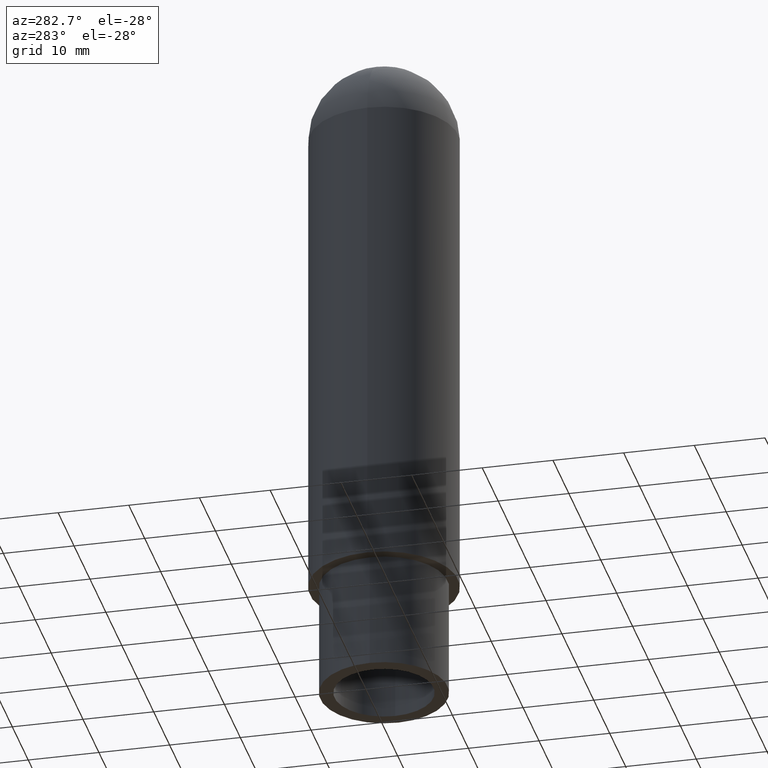
[diagram: clean part render]
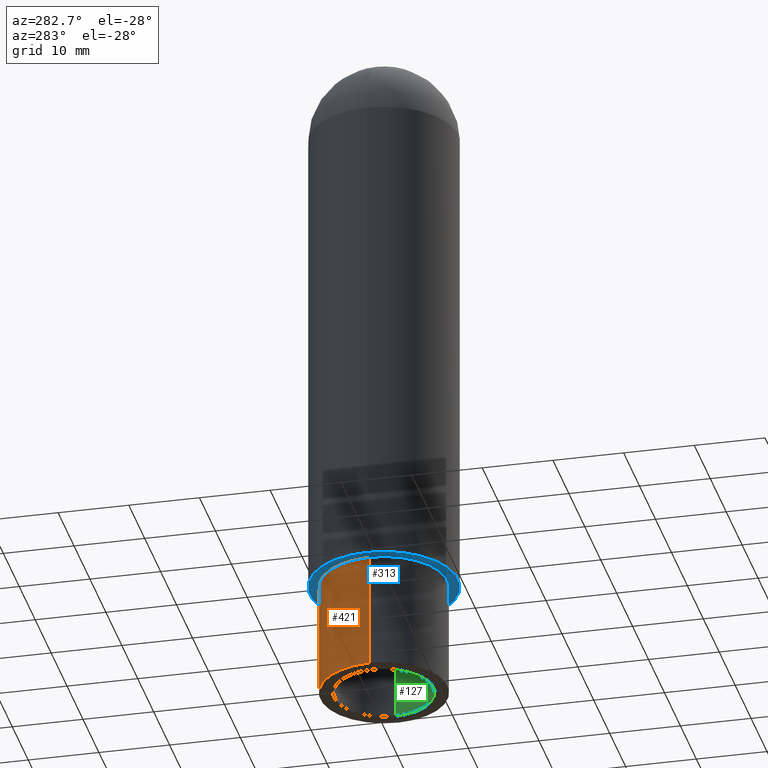
[diagram: same view with three faces highlighted in distinct colors, each labeled with its STEP entity id]
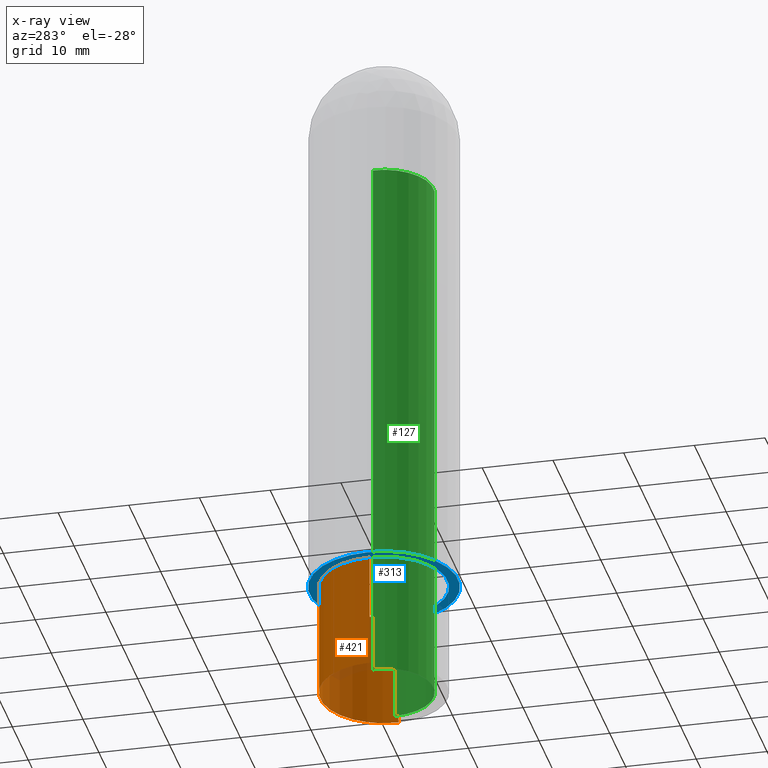
[diagram: x-ray of the same camera — body ghosted, the three highlighted faces saturated]
A machine part, auxiliary view with three faces highlighted in distinct colors.
The next image is the same camera in x-ray (body ghosted, the three faces saturated) — at least one of them is partly hidden behind the body in this view.
Their STEP definitions:

[orange] entity #421 — the highlighted cylindrical surface (partial cylindrical patch) has radius 9 mm, axis along (0, 0, 1).
#49=CARTESIAN_POINT('',(-4.716946060098080,-1.613904443833870,0.0));
#50=VERTEX_POINT('',#49);
#51=CARTESIAN_POINT('',(-4.716946060098080,-1.613904443833870,16.499999999999993));
#52=VERTEX_POINT('',#51);
#53=CARTESIAN_POINT('',(-4.716946060098080,-1.613904443833870,0.0));
#54=DIRECTION('',(0.0,0.0,1.0));
#55=VECTOR('',#54,16.499999999999993);
#56=LINE('',#53,#55);
#57=EDGE_CURVE('',#50,#52,#56,.T.);
#59=CARTESIAN_POINT('',(13.283053939901919,-1.613904443833870,0.0));
#60=VERTEX_POINT('',#59);
#68=CARTESIAN_POINT('',(13.283053939901921,-1.613904443833868,16.499999999999993));
#69=VERTEX_POINT('',#68);
#70=CARTESIAN_POINT('',(13.283053939901921,-1.613904443833868,16.499999999999993));
#71=DIRECTION('',(0.0,0.0,-1.0));
#72=VECTOR('',#71,16.499999999999993);
#73=LINE('',#70,#72);
#74=EDGE_CURVE('',#69,#60,#73,.T.);
#304=CARTESIAN_POINT('',(4.283053939901920,-1.613904443833871,16.499999999999993));
#305=DIRECTION('',(0.0,0.0,-1.0));
#306=DIRECTION('',(-1.0,0.0,0.0));
#307=AXIS2_PLACEMENT_3D('',#304,#305,#306);
#308=CIRCLE('',#307,9.0);
#309=EDGE_CURVE('',#52,#69,#308,.T.);
#404=CARTESIAN_POINT('',(4.283053939901920,-1.613904443833871,0.0));
#405=DIRECTION('',(0.0,0.0,1.0));
#406=DIRECTION('',(-1.0,0.0,0.0));
#407=AXIS2_PLACEMENT_3D('',#404,#405,#406);
#408=CYLINDRICAL_SURFACE('',#407,9.0);
#409=ORIENTED_EDGE('',*,*,#57,.T.);
#410=ORIENTED_EDGE('',*,*,#309,.T.);
#411=ORIENTED_EDGE('',*,*,#74,.T.);
#412=CARTESIAN_POINT('',(4.283053939901920,-1.613904443833871,0.0));
#413=DIRECTION('',(0.0,0.0,-1.0));
#414=DIRECTION('',(-1.0,0.0,0.0));
#415=AXIS2_PLACEMENT_3D('',#412,#413,#414);
#416=CIRCLE('',#415,9.0);
#417=EDGE_CURVE('',#50,#60,#416,.T.);
#418=ORIENTED_EDGE('',*,*,#417,.F.);
#419=EDGE_LOOP('',(#409,#410,#411,#418));
#420=FACE_OUTER_BOUND('',#419,.T.);
#421=ADVANCED_FACE('',(#420),#408,.T.);

[blue] entity #313 — the highlighted planar face has unit normal (0, 0, -1).
#51=CARTESIAN_POINT('',(-4.716946060098080,-1.613904443833870,16.499999999999993));
#52=VERTEX_POINT('',#51);
#68=CARTESIAN_POINT('',(13.283053939901921,-1.613904443833868,16.499999999999993));
#69=VERTEX_POINT('',#68);
#76=CARTESIAN_POINT('',(4.283053939901920,-1.613904443833871,16.499999999999993));
#77=DIRECTION('',(0.0,0.0,-1.0));
#78=DIRECTION('',(-1.0,0.0,0.0));
#79=AXIS2_PLACEMENT_3D('',#76,#77,#78);
#80=CIRCLE('',#79,9.0);
#81=EDGE_CURVE('',#69,#52,#80,.T.);
#207=CARTESIAN_POINT('',(-6.216946060098080,-1.613904443833868,16.499999999999996));
#208=VERTEX_POINT('',#207);
#217=CARTESIAN_POINT('',(14.783053939901922,-1.613904443833868,16.499999999999993));
#218=VERTEX_POINT('',#217);
#219=CARTESIAN_POINT('',(4.283053939901921,-1.613904443833869,16.499999999999993));
#220=DIRECTION('',(0.0,0.0,-1.0));
#221=DIRECTION('',(-1.0,0.0,0.0));
#222=AXIS2_PLACEMENT_3D('',#219,#220,#221);
#223=CIRCLE('',#222,10.500000000000000);
#224=EDGE_CURVE('',#218,#208,#223,.T.);
#284=CARTESIAN_POINT('',(4.283053939901921,-1.613904443833869,16.499999999999993));
#285=DIRECTION('',(0.0,0.0,-1.0));
#286=DIRECTION('',(-1.0,0.0,0.0));
#287=AXIS2_PLACEMENT_3D('',#284,#285,#286);
#288=CIRCLE('',#287,10.500000000000000);
#289=EDGE_CURVE('',#208,#218,#288,.T.);
#294=CARTESIAN_POINT('',(4.283053939901921,-1.613904443833869,16.499999999999993));
#295=DIRECTION('',(0.0,0.0,-1.0));
#296=DIRECTION('',(-1.0,0.0,0.0));
#297=AXIS2_PLACEMENT_3D('',#294,#295,#296);
#298=PLANE('',#297);
#299=ORIENTED_EDGE('',*,*,#224,.T.);
#300=ORIENTED_EDGE('',*,*,#289,.T.);
#301=EDGE_LOOP('',(#299,#300));
#302=FACE_OUTER_BOUND('',#301,.T.);
#303=ORIENTED_EDGE('',*,*,#81,.F.);
#304=CARTESIAN_POINT('',(4.283053939901920,-1.613904443833871,16.499999999999993));
#305=DIRECTION('',(0.0,0.0,-1.0));
#306=DIRECTION('',(-1.0,0.0,0.0));
#307=AXIS2_PLACEMENT_3D('',#304,#305,#306);
#308=CIRCLE('',#307,9.0);
#309=EDGE_CURVE('',#52,#69,#308,.T.);
#310=ORIENTED_EDGE('',*,*,#309,.F.);
#311=EDGE_LOOP('',(#303,#310));
#312=FACE_BOUND('',#311,.T.);
#313=ADVANCED_FACE('',(#302,#312),#298,.T.);

[green] entity #127 — the highlighted cylindrical surface (partial cylindrical patch) has radius 7 mm, axis along (0, 0, 1).
#86=CARTESIAN_POINT('',(4.283053939901920,-1.613904443833871,0.0));
#87=DIRECTION('',(0.0,0.0,1.0));
#88=DIRECTION('',(-1.0,0.0,0.0));
#89=AXIS2_PLACEMENT_3D('',#86,#87,#88);
#90=CYLINDRICAL_SURFACE('',#89,7.000000000000001);
#91=CARTESIAN_POINT('',(-2.716946060098081,-1.613904443833870,78.0));
#92=VERTEX_POINT('',#91);
#93=CARTESIAN_POINT('',(-2.716946060098081,-1.613904443833870,0.0));
#94=VERTEX_POINT('',#93);
#95=CARTESIAN_POINT('',(-2.716946060098081,-1.613904443833870,78.0));
#96=DIRECTION('',(0.0,0.0,-1.0));
#97=VECTOR('',#96,78.0);
#98=LINE('',#95,#97);
#99=EDGE_CURVE('',#92,#94,#98,.T.);
#100=ORIENTED_EDGE('',*,*,#99,.F.);
#101=CARTESIAN_POINT('',(11.283053939901922,-1.613904443833870,78.0));
#102=VERTEX_POINT('',#101);
#103=CARTESIAN_POINT('',(4.283053939901920,-1.613904443833871,78.0));
#104=DIRECTION('',(0.0,0.0,1.0));
#105=DIRECTION('',(-1.0,0.0,0.0));
#106=AXIS2_PLACEMENT_3D('',#103,#104,#105);
#107=CIRCLE('',#106,7.000000000000001);
#108=EDGE_CURVE('',#92,#102,#107,.T.);
#109=ORIENTED_EDGE('',*,*,#108,.T.);
#110=CARTESIAN_POINT('',(11.283053939901922,-1.613904443833870,0.0));
#111=VERTEX_POINT('',#110);
#112=CARTESIAN_POINT('',(11.283053939901922,-1.613904443833870,0.0));
#113=DIRECTION('',(0.0,0.0,1.0));
#114=VECTOR('',#113,78.0);
#115=LINE('',#112,#114);
#116=EDGE_CURVE('',#111,#102,#115,.T.);
#117=ORIENTED_EDGE('',*,*,#116,.F.);
#118=CARTESIAN_POINT('',(4.283053939901920,-1.613904443833871,0.0));
#119=DIRECTION('',(0.0,0.0,1.0));
#120=DIRECTION('',(-1.0,0.0,0.0));
#121=AXIS2_PLACEMENT_3D('',#118,#119,#120);
#122=CIRCLE('',#121,7.000000000000001);
#123=EDGE_CURVE('',#94,#111,#122,.T.);
#124=ORIENTED_EDGE('',*,*,#123,.F.);
#125=EDGE_LOOP('',(#100,#109,#117,#124));
#126=FACE_OUTER_BOUND('',#125,.T.);
#127=ADVANCED_FACE('',(#126),#90,.F.);